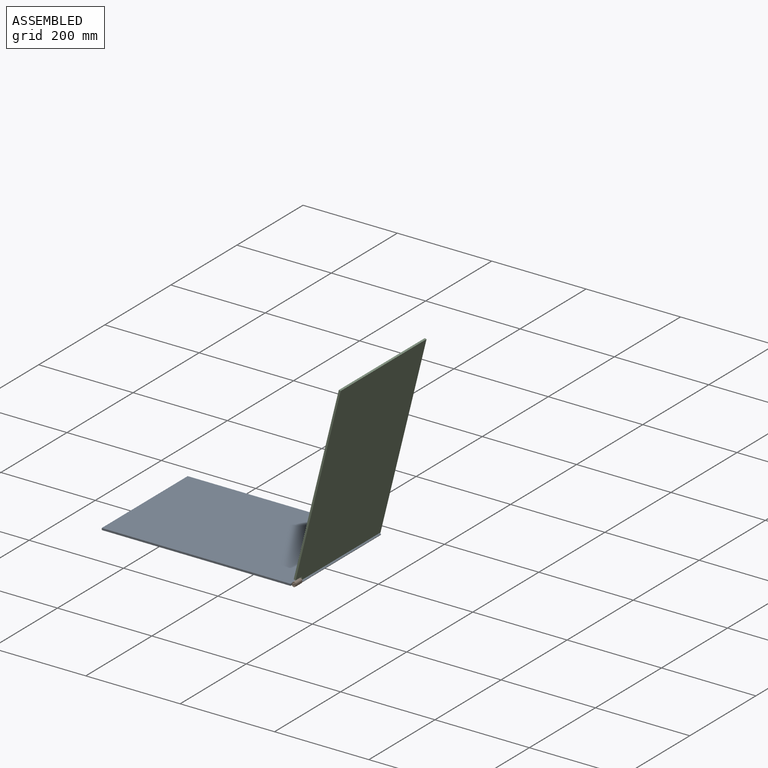
[diagram: assembled view]
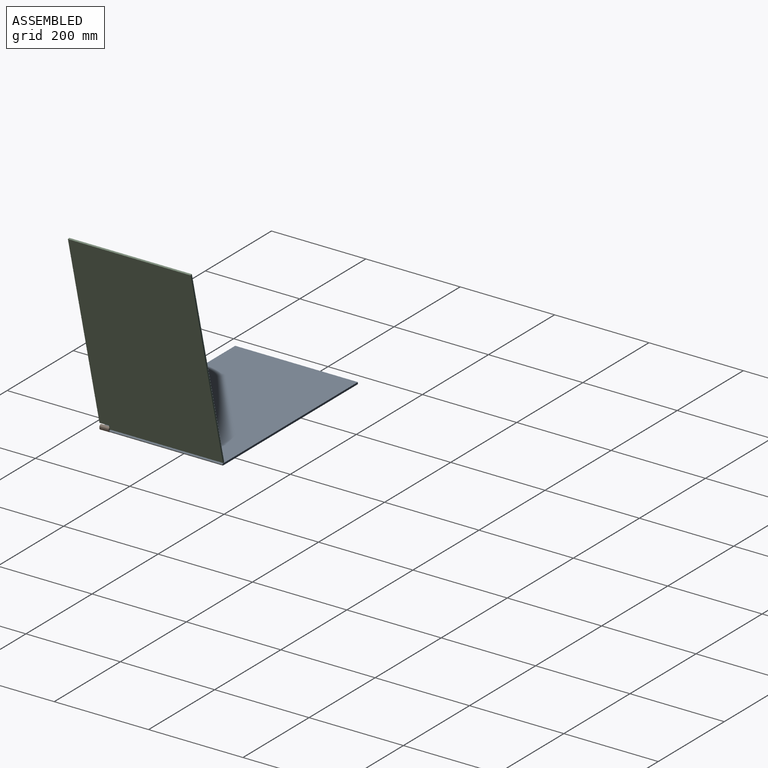
[diagram: assembled view, second angle]
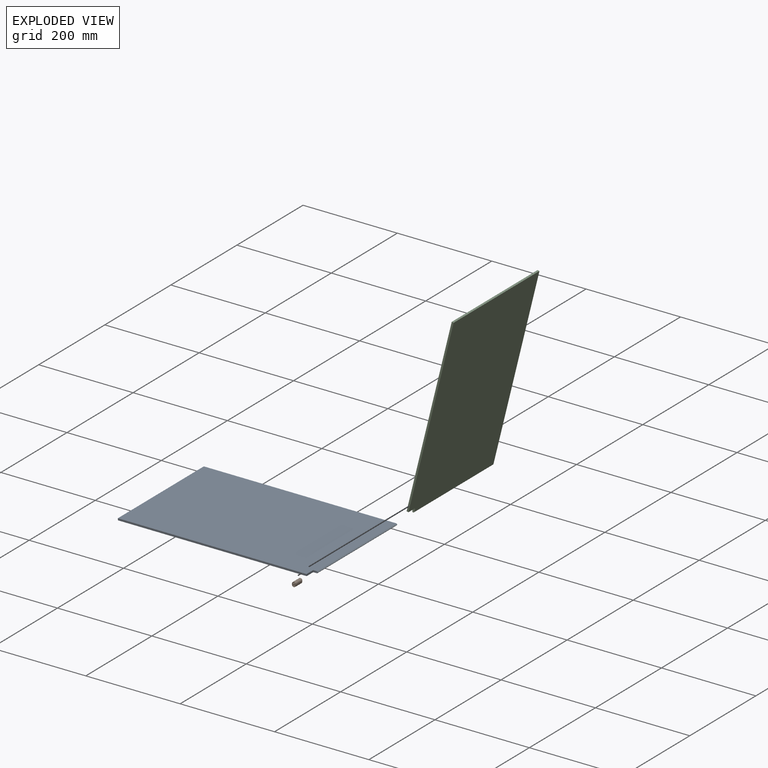
[diagram: exploded view]
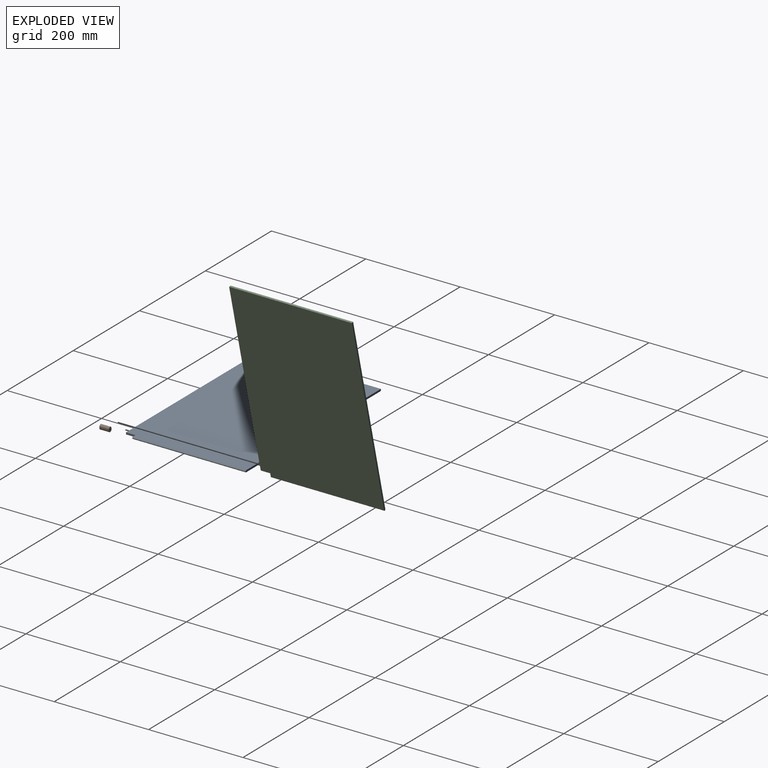
[diagram: exploded view, second angle]
ASSEMBLY  parts=3 mates=3
PART A: 12 faces, bbox 410x260x4 mm
  f0: plane 400x4mm, normal (0,-1,0), area 1600mm2, adj f3,f4,f5,f7
  f1: plane 240x0.6mm, normal (1,0,0), area 144mm2, adj f2,f6,f10,f11
  f2: plane 410x4mm, normal (0,1,0), area 1637.1mm2, adj f1,f3,f4,f5,f10,f11
  f3: plane 260x4mm, normal (-1,0,0), area 1040mm2, adj f0,f2,f4,f5
  f4: plane 408.3x260mm, normal (0,0,1), area 105992mm2, adj f0,f2,f3,f6,f7,f11
  f5: plane 408.3x260mm, normal (0,0,-1), area 105992mm2, adj f0,f2,f3,f6,f7,f10
  f6: plane 10x4mm, normal (0,-1,0), area 34.7mm2, adj f1,f4,f5,f7,f9,f10,f11
  f7: plane 20x4mm, normal (1,0,0), area 80mm2, adj f0,f4,f5,f6
  f8: cone r=0mm half-angle=59deg, axis (0,-1,0), area 2.8mm2, adj f9
  f9: cylinder r=0.88mm len=8.75mm, axis (0,-1,0), area 48.1mm2, adj f6,f8
  f10: plane 240x1.7mm, normal (0.71,0,-0.71), area 577mm2, adj f1,f2,f5,f6
  f11: plane 240x1.7mm, normal (0.71,0,0.71), area 577mm2, adj f1,f2,f4,f6
PART B: 10 faces, bbox 10x8x20 mm
  f0: plane 20x2mm, normal (0,1,0), area 40mm2, adj f2,f3,f4,f5
  f1: plane 20x2mm, normal (0,-1,0), area 40mm2, adj f2,f3,f4,f5
  f2: plane 10x8mm, normal (0,0,1), area 60mm2, adj f0,f1,f4,f5,f6,f7
  f3: plane 10x8mm, normal (0,0,-1), area 52.1mm2, adj f0,f1,f4,f5,f8,f9
  f4: cylinder r=4mm len=20mm, axis (0,0,-1), area 251.3mm2, adj f0,f1,f2,f3
  f5: cylinder r=4mm len=20mm, axis (0,0,-1), area 251.3mm2, adj f0,f1,f2,f3
  f6: cylinder r=1mm len=19.5mm, axis (0,0,-1), area 122.5mm2, adj f2,f9
  f7: cylinder r=1mm len=19.5mm, axis (0,0,-1), area 122.5mm2, adj f2,f8
  f8: cone r=1mm half-angle=45deg, axis (0,0,-1), area 5.6mm2, adj f3,f7
  f9: cone r=1mm half-angle=45deg, axis (0,0,-1), area 5.6mm2, adj f3,f6
PART C: same geometry as A
PLACE A t=(0.7,0.29,-2.64)mm fixed
PLACE B rot(axis=(-0.58,0.58,0.58),120deg) t=(202.7,-259.71,1.86)mm
PLACE C rot(axis=(0,1,0),103.8deg) t=(249.06,0.29,200.98)mm
MATE revolute A.f8 <-> B.f6  axis (0,-1,0) through (202.7,-239.71,-0.64)mm
MATE revolute C.f8 <-> B.f7  axis (0,-1,0) through (202.7,-239.71,4.36)mm
MATE parallel A.f1 <-> B.f1  axis (1,0,0) through (205.7,-119.71,-0.64)mm
